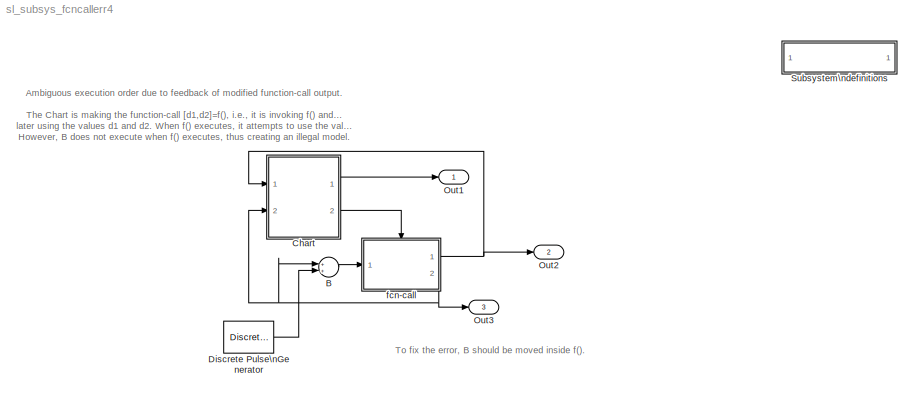
MODEL sl_subsys_fcncallerr4
KIND model
BLOCK [SubSystem]  Subsystem\ndefinitions
  MaskDisplay = disp('Subsystem\\ndefinitions')\n\n
  MaskIconFrame = on
  MaskIconOpaque = on
  MaskIconRotate = none
  MaskIconUnits = autoscale
  MinAlgLoopOccurrences = off
  OpenFcn = helpview([matlabroot,'/toolbox/simulink/simdemos/sl_subsys_definitions.html']);
  Ports = []
  PropExecContextAcrossSSBoundary = on
  RTWSystemCode = Auto
  TreatAsAtomicUnit = off
BLOCK [Sum] B
  Ports = [2, 1]
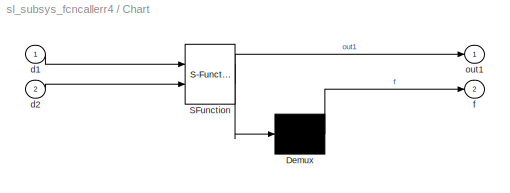
BLOCK [SubSystem] Chart
  MaskDescription = Stateflow diagram
  MaskDisplay = plot(sf('Private','sfblk','xIcon'),sf('Private','sfblk','yIcon'));text(0.5,0,sf('Private', 'sfblk', 'tIcon'),'HorizontalAl','Center','VerticalAl','Bottom');
  MaskIconFrame = off
  MaskIconOpaque = off
  MaskIconRotate = none
  MaskIconUnits = autoscale
  MaskSelfModifiable = on
  MaskType = Stateflow
  MinAlgLoopOccurrences = off
  Ports = [2, 2]
  PropExecContextAcrossSSBoundary = on
  RTWSystemCode = Auto
  TreatAsAtomicUnit = off
BLOCK [Demux] Chart/ Demux 
  Outputs = 1
  Ports = [1, 1]
BLOCK [S-Function] Chart/ SFunction 
  FunctionName = sf_sfun
  PortCounts = [2 2]
  Ports = [2, 2]
  Tag = Stateflow S-Function sl_subsys_fcncallerr4 1
BLOCK [Inport] Chart/d1
  IconDisplay = Port number
  LatchInput = off
  Port = 1
BLOCK [Inport] Chart/d2
  IconDisplay = Port number
  LatchInput = off
  Port = 2
BLOCK [Outport] Chart/f
  IconDisplay = Port number
  Port = 2
BLOCK [Outport] Chart/out1
  IconDisplay = Port number
BLOCK [DiscretePulseGenerator] Discrete Pulse\nGenerator
  Ports = [0, 1]
BLOCK [Outport] Out1
  IconDisplay = Port number
BLOCK [Outport] Out2
  IconDisplay = Port number
  Port = 2
BLOCK [Outport] Out3
  IconDisplay = Port number
  Port = 3
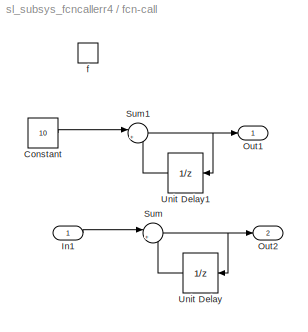
BLOCK [SubSystem] fcn-call
  MinAlgLoopOccurrences = off
  Ports = [1, 2, 0, 1]
  PropExecContextAcrossSSBoundary = on
  RTWSystemCode = Auto
  TreatAsAtomicUnit = on
BLOCK [Constant] fcn-call/Constant
  Value = 10
BLOCK [Inport] fcn-call/In1
  IconDisplay = Port number
  LatchInput = off
  Port = 1
BLOCK [Outport] fcn-call/Out1
  IconDisplay = Port number
BLOCK [Outport] fcn-call/Out2
  IconDisplay = Port number
  Port = 2
BLOCK [Sum] fcn-call/Sum
  IconShape = round
  Inputs = |++
  Ports = [2, 1]
BLOCK [Sum] fcn-call/Sum1
  IconShape = round
  Inputs = |++
  Ports = [2, 1]
BLOCK [UnitDelay] fcn-call/Unit Delay
  SampleTime = -1
BLOCK [UnitDelay] fcn-call/Unit Delay1
  SampleTime = -1
BLOCK [TriggerPort] fcn-call/f
  Ports = []
  StatesWhenEnabling = reset
  TriggerType = function-call
ANNOTATION (root): Ambiguous execution order due to feedback of modified function-call output.\n\nThe Chart is making the function-call [d1,d2]=f(), i.e., it is invoking f() and then \nlater using the values d1 and d2. When f() executes, it attempts to use the value B(Out2).\nHowever, B does not execute when f() executes, thus creating an illegal model.
ANNOTATION (root): To fix the error, B should be moved inside f().
LINE B:1 -> fcn-call:1
LINE Chart/ Demux :1 -> Chart/f:1
LINE Chart/ SFunction :1 -> Chart/ Demux :1
LINE Chart/ SFunction :2 -> Chart/out1:1
LINE Chart/d1:1 -> Chart/ SFunction :1
LINE Chart/d2:1 -> Chart/ SFunction :2
LINE Chart:1 -> Out1:1
LINE Chart:2 -> fcn-call:trigger
LINE Discrete Pulse\nGenerator:1 -> B:2
LINE fcn-call/Constant:1 -> fcn-call/Sum1:1
LINE fcn-call/In1:1 -> fcn-call/Sum:1
NET fcn-call/Sum1:1 -> fcn-call/Out1:1, fcn-call/Unit Delay1:1
NET fcn-call/Sum:1 -> fcn-call/Out2:1, fcn-call/Unit Delay:1
LINE fcn-call/Unit Delay1:1 -> fcn-call/Sum1:2
LINE fcn-call/Unit Delay:1 -> fcn-call/Sum:2
NET fcn-call:1 -> Chart:1, Out2:1
NET fcn-call:2 -> B:1, Chart:2, Out3:1
note: NET lines group one-source signal fan-out (src -> all destinations, sorted); 1:1 wires keep LINE
CHART Chart states=2 transitions=3
  STATE_LABEL 'one/\\nentry:f;out1=d1+d2;'
  STATE_LABEL 'two/\\nentry: f;out1=d1-d2;'
